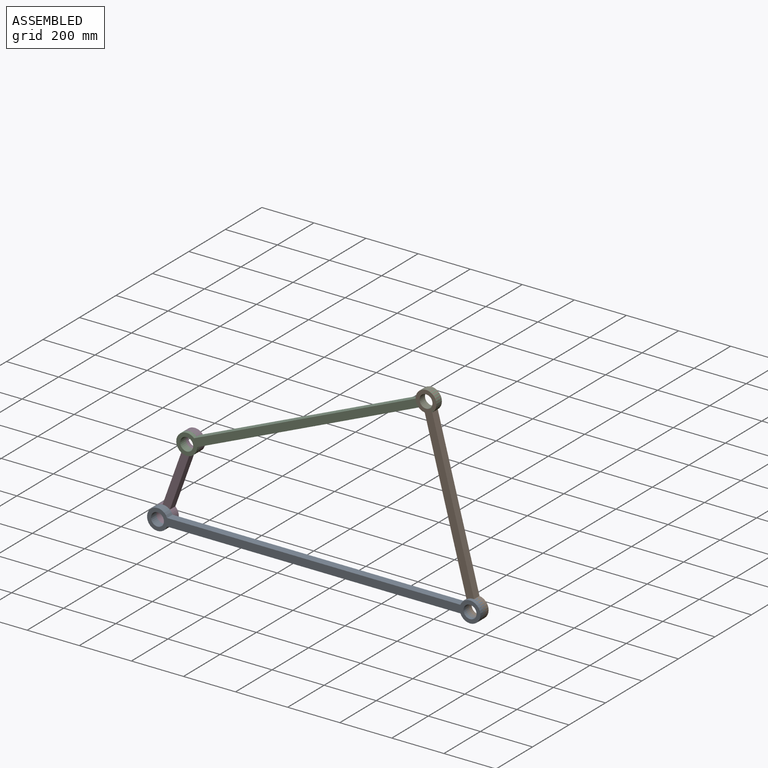
[diagram: assembled view]
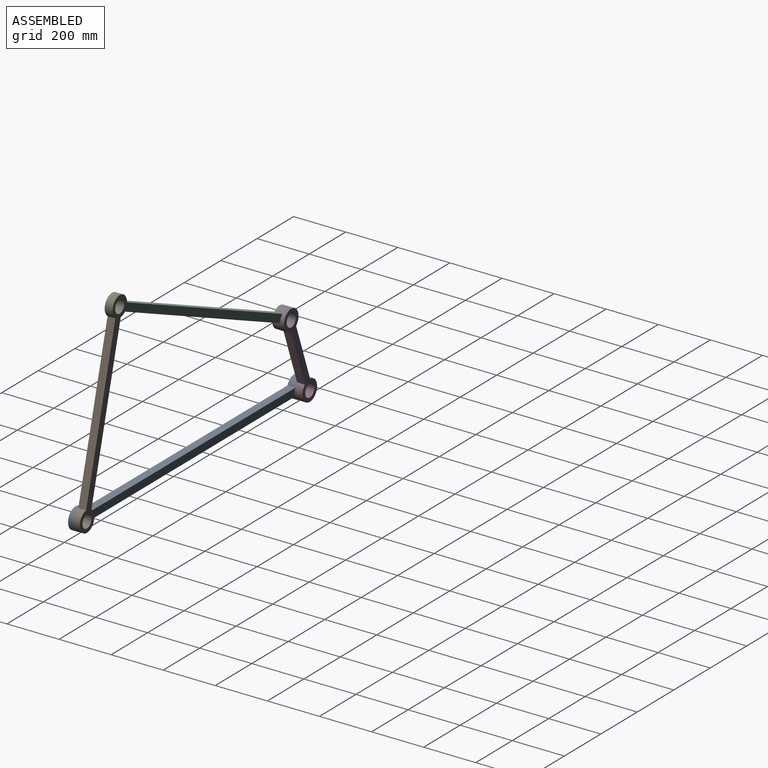
[diagram: assembled view, second angle]
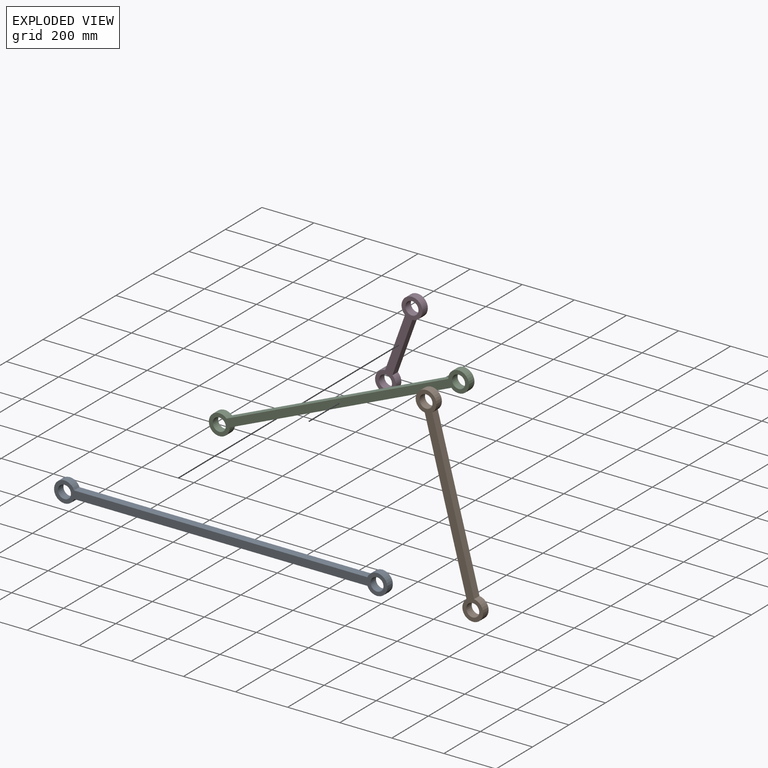
[diagram: exploded view]
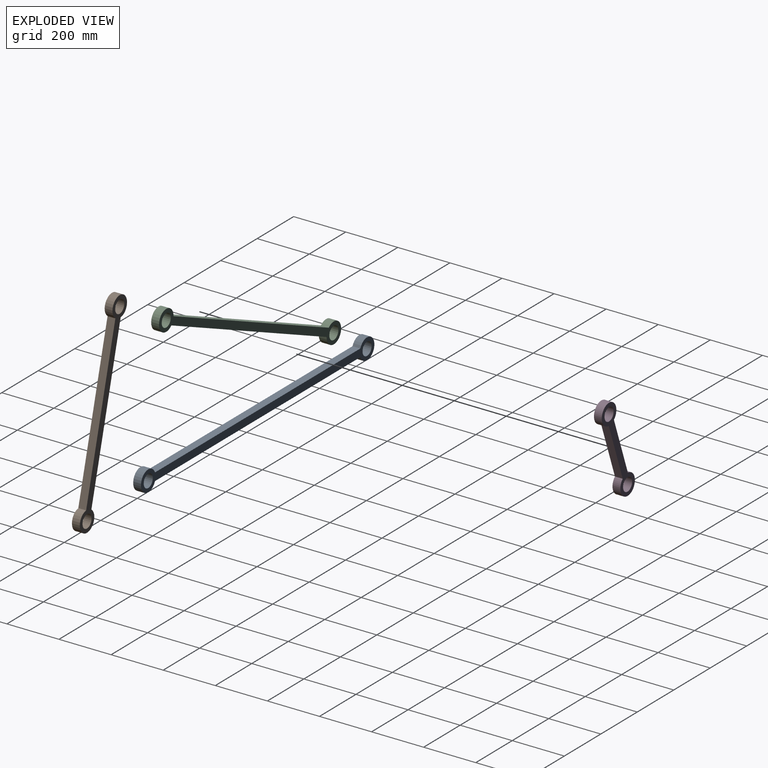
[diagram: exploded view, second angle]
ASSEMBLY  parts=4 mates=4
PART A: 8 faces, bbox 1280x30x80 mm
  f0: plane 1125.84x30mm, normal (0,0,-1), area 33775.1mm2, adj f1,f4,f6,f7
  f1: cylinder r=40mm len=80mm, axis (0,1,0), area 6617.3mm2, adj f0,f2,f6,f7
  f2: plane 1125.84x30mm, normal (0,0,1), area 33775.1mm2, adj f1,f4,f6,f7
  f3: cylinder r=25mm len=50mm, axis (0,1,0), area 4712.4mm2, adj f6,f7
  f4: cylinder r=40mm len=80mm, axis (0,1,0), area 6617.3mm2, adj f0,f2,f6,f7
  f5: cylinder r=25mm len=50mm, axis (0,1,0), area 4712.4mm2, adj f6,f7
  f6: plane 1280x80mm, normal (0,-1,0), area 39783.6mm2, adj f0,f1,f2,f3,f4,f5
  f7: plane 1280x80mm, normal (0,1,0), area 39783.6mm2, adj f0,f1,f2,f3,f4,f5
PART B: 8 faces, bbox 780x30x80 mm
  f0: plane 625.84x30mm, normal (0,0,-1), area 18775.1mm2, adj f1,f4,f6,f7
  f1: cylinder r=40mm len=80mm, axis (0,1,0), area 6617.3mm2, adj f0,f2,f6,f7
  f2: plane 625.84x30mm, normal (0,0,1), area 18775.1mm2, adj f1,f4,f6,f7
  f3: cylinder r=25mm len=50mm, axis (0,1,0), area 4712.4mm2, adj f6,f7
  f4: cylinder r=40mm len=80mm, axis (0,1,0), area 6617.3mm2, adj f0,f2,f6,f7
  f5: cylinder r=25mm len=50mm, axis (0,1,0), area 4712.4mm2, adj f6,f7
  f6: plane 780x80mm, normal (0,-1,0), area 24783.6mm2, adj f0,f1,f2,f3,f4,f5
  f7: plane 780x80mm, normal (0,1,0), area 24783.6mm2, adj f0,f1,f2,f3,f4,f5
PART C: 8 faces, bbox 1080x30x80 mm
  f0: plane 925.84x30mm, normal (0,0,-1), area 27775.1mm2, adj f1,f4,f6,f7
  f1: cylinder r=40mm len=80mm, axis (0,1,0), area 6617.3mm2, adj f0,f2,f6,f7
  f2: plane 925.84x30mm, normal (0,0,1), area 27775.1mm2, adj f1,f4,f6,f7
  f3: cylinder r=25mm len=50mm, axis (0,1,0), area 4712.4mm2, adj f6,f7
  f4: cylinder r=40mm len=80mm, axis (0,1,0), area 6617.3mm2, adj f0,f2,f6,f7
  f5: cylinder r=25mm len=50mm, axis (0,1,0), area 4712.4mm2, adj f6,f7
  f6: plane 1080x80mm, normal (0,-1,0), area 33783.6mm2, adj f0,f1,f2,f3,f4,f5
  f7: plane 1080x80mm, normal (0,1,0), area 33783.6mm2, adj f0,f1,f2,f3,f4,f5
PART D: 8 faces, bbox 380x30x80 mm
  f0: plane 225.84x30mm, normal (0,0,-1), area 6775.1mm2, adj f1,f4,f6,f7
  f1: cylinder r=40mm len=80mm, axis (0,1,0), area 6617.3mm2, adj f0,f2,f6,f7
  f2: plane 225.84x30mm, normal (0,0,1), area 6775.1mm2, adj f1,f4,f6,f7
  f3: cylinder r=25mm len=50mm, axis (0,1,0), area 4712.4mm2, adj f6,f7
  f4: cylinder r=40mm len=80mm, axis (0,1,0), area 6617.3mm2, adj f0,f2,f6,f7
  f5: cylinder r=25mm len=50mm, axis (0,1,0), area 4712.4mm2, adj f6,f7
  f6: plane 380x80mm, normal (0,-1,0), area 12783.6mm2, adj f0,f1,f2,f3,f4,f5
  f7: plane 380x80mm, normal (0,1,0), area 12783.6mm2, adj f0,f1,f2,f3,f4,f5
PLACE A t=(139.7,15.36,9.27)mm fixed
PLACE B rot(axis=(0.79,0,-0.61),180deg) t=(650,30.36,347.59)mm
PLACE C rot(axis=(0,-1,0),23.2deg) t=(100.84,30.36,488.71)mm
PLACE D rot(axis=(0,1,0),109.8deg) t=(-409.47,45.36,150.4)mm
MATE revolute D.f3 <-> C.f3  axis (0,-1,0) through (-358.63,30.36,291.52)mm
MATE revolute C.f5 <-> B.f3  axis (0,1,0) through (560.31,15.36,685.9)mm
MATE revolute A.f3 <-> D.f5  axis (0,1,0) through (-460.3,30.36,9.27)mm
MATE cylindrical A.f5 <-> B.f5  axis (0,1,0) through (739.7,0.36,9.27)mm
